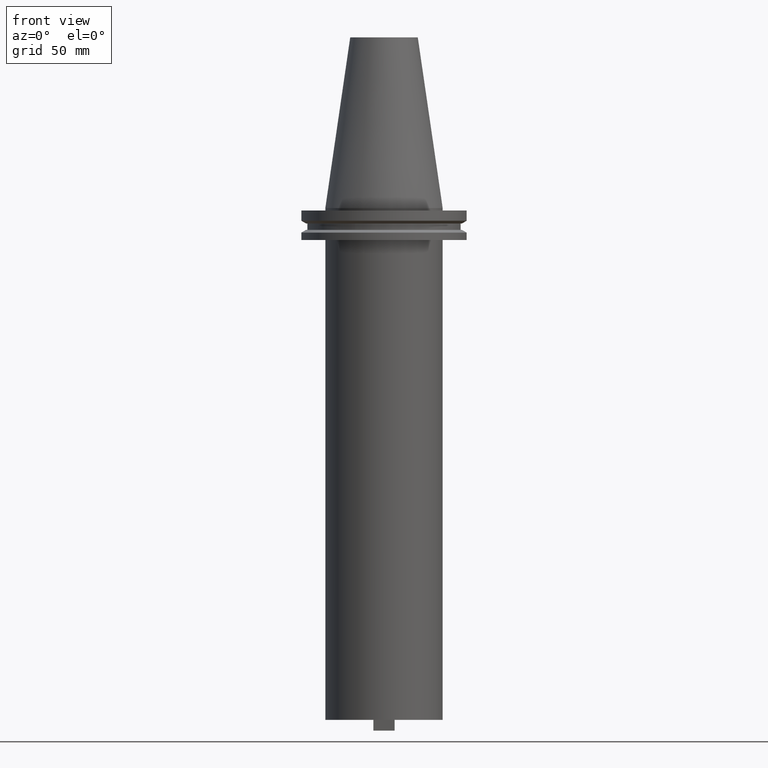
[diagram: clean part render]
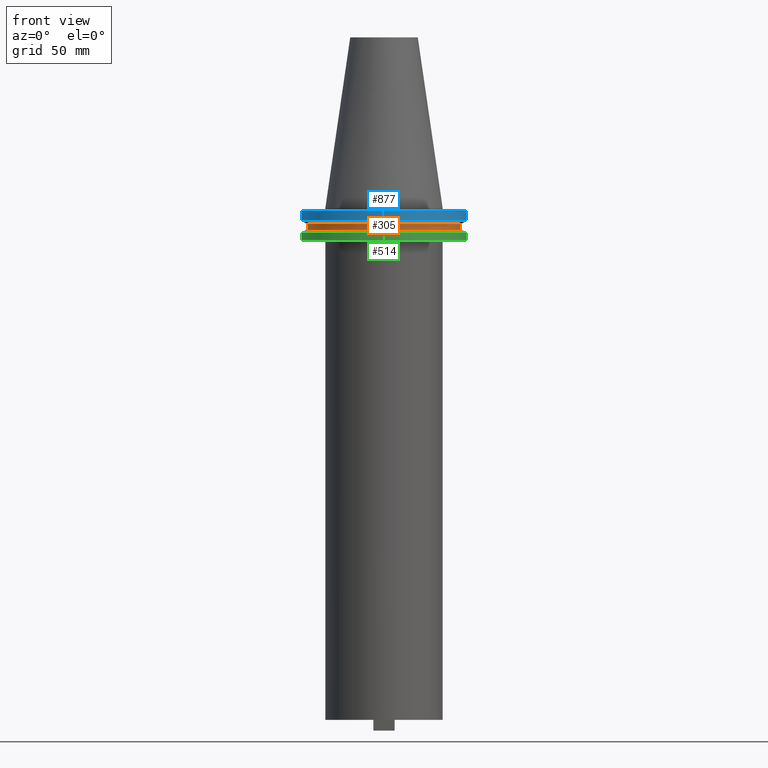
[diagram: same view with three faces highlighted in distinct colors, each labeled with its STEP entity id]
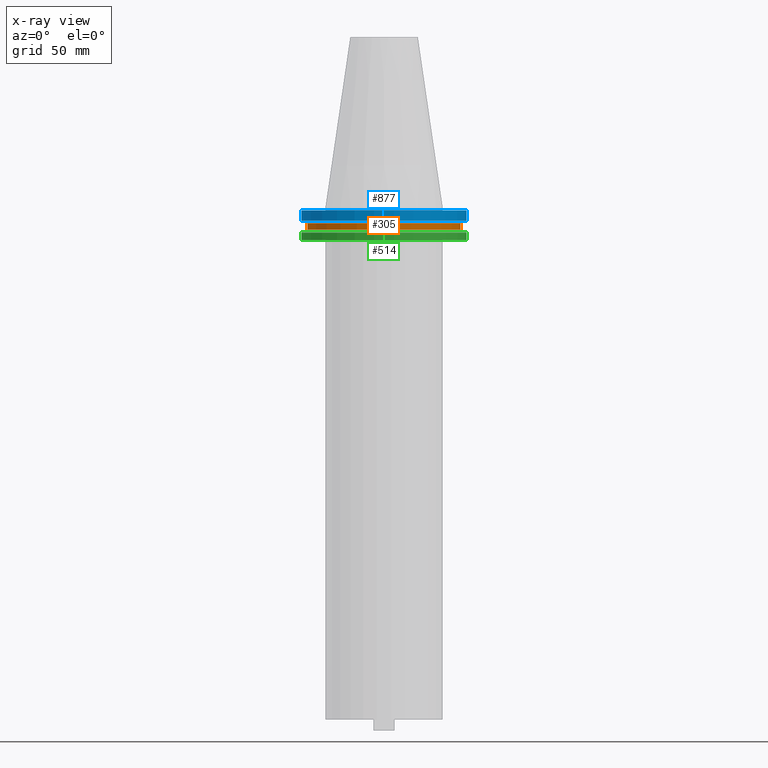
[diagram: x-ray of the same camera — body ghosted, the three highlighted faces saturated]
A machine part, front view with three faces highlighted in distinct colors.
The next image is the same camera in x-ray (body ghosted, the three faces saturated) — at least one of them is partly hidden behind the body in this view.
Their STEP definitions:

[orange] entity #305 — the highlighted cylindrical surface (partial cylindrical patch) has radius 45.645 mm, axis along (-0, -0, 1).
#46 = DIRECTION ( 'NONE',  ( -0.000000000000000000, -0.000000000000000000, 1.000000000000000000 ) ) ;
#113 = CIRCLE ( 'NONE', #466, 45.64500000000000313 ) ;
#118 = CYLINDRICAL_SURFACE ( 'NONE', #647, 45.64500000000000313 ) ;
#129 = DIRECTION ( 'NONE',  ( -0.000000000000000000, -0.000000000000000000, 1.000000000000000000 ) ) ;
#130 = VERTEX_POINT ( 'NONE', #934 ) ;
#163 = ORIENTED_EDGE ( 'NONE', *, *, #520, .F. ) ;
#179 = ORIENTED_EDGE ( 'NONE', *, *, #575, .F. ) ;
#193 = EDGE_LOOP ( 'NONE', ( #163, #786, #747, #179 ) ) ;
#220 = CARTESIAN_POINT ( 'NONE',  ( -45.64500000000000313, 5.589900314708094957E-15, -9.204999999999991189 ) ) ;
#238 = DIRECTION ( 'NONE',  ( -0.000000000000000000, -0.000000000000000000, 1.000000000000000000 ) ) ;
#257 = EDGE_CURVE ( 'NONE', #735, #530, #972, .T. ) ;
#302 = VECTOR ( 'NONE', #989, 1000.000000000000000 ) ;
#305 = ADVANCED_FACE ( 'NONE', ( #511 ), #118, .T. ) ;
#357 = VERTEX_POINT ( 'NONE', #220 ) ;
#358 = DIRECTION ( 'NONE',  ( 1.000000000000000000, 0.000000000000000000, 0.000000000000000000 ) ) ;
#466 = AXIS2_PLACEMENT_3D ( 'NONE', #986, #129, #358 ) ;
#511 = FACE_OUTER_BOUND ( 'NONE', #193, .T. ) ;
#520 = EDGE_CURVE ( 'NONE', #130, #357, #915, .T. ) ;
#530 = VERTEX_POINT ( 'NONE', #902 ) ;
#537 = CARTESIAN_POINT ( 'NONE',  ( 0.000000000000000000, 0.000000000000000000, -13.05499999999999794 ) ) ;
#545 = AXIS2_PLACEMENT_3D ( 'NONE', #537, #238, #547 ) ;
#547 = DIRECTION ( 'NONE',  ( 1.000000000000000000, 0.000000000000000000, 0.000000000000000000 ) ) ;
#562 = VECTOR ( 'NONE', #741, 1000.000000000000000 ) ;
#575 = EDGE_CURVE ( 'NONE', #357, #530, #113, .T. ) ;
#594 = DIRECTION ( 'NONE',  ( 1.000000000000000000, 0.000000000000000000, 0.000000000000000000 ) ) ;
#598 = EDGE_CURVE ( 'NONE', #130, #735, #695, .T. ) ;
#647 = AXIS2_PLACEMENT_3D ( 'NONE', #833, #46, #594 ) ;
#695 = CIRCLE ( 'NONE', #545, 45.64500000000000313 ) ;
#735 = VERTEX_POINT ( 'NONE', #794 ) ;
#741 = DIRECTION ( 'NONE',  ( -0.000000000000000000, -0.000000000000000000, 1.000000000000000000 ) ) ;
#747 = ORIENTED_EDGE ( 'NONE', *, *, #257, .T. ) ;
#786 = ORIENTED_EDGE ( 'NONE', *, *, #598, .T. ) ;
#794 = CARTESIAN_POINT ( 'NONE',  ( 45.64500000000000313, 0.000000000000000000, -13.05499999999999794 ) ) ;
#831 = CARTESIAN_POINT ( 'NONE',  ( -45.64500000000000313, 5.589900314708094957E-15, 101.5999999999999943 ) ) ;
#833 = CARTESIAN_POINT ( 'NONE',  ( 0.000000000000000000, 0.000000000000000000, 101.5999999999999943 ) ) ;
#902 = CARTESIAN_POINT ( 'NONE',  ( 45.64500000000000313, 0.000000000000000000, -9.204999999999991189 ) ) ;
#915 = LINE ( 'NONE', #831, #562 ) ;
#917 = CARTESIAN_POINT ( 'NONE',  ( 45.64500000000000313, 0.000000000000000000, 101.5999999999999943 ) ) ;
#934 = CARTESIAN_POINT ( 'NONE',  ( -45.64500000000000313, 5.589900314708094957E-15, -13.05499999999999794 ) ) ;
#972 = LINE ( 'NONE', #917, #302 ) ;
#986 = CARTESIAN_POINT ( 'NONE',  ( 0.000000000000000000, 0.000000000000000000, -9.204999999999991189 ) ) ;
#989 = DIRECTION ( 'NONE',  ( -0.000000000000000000, -0.000000000000000000, 1.000000000000000000 ) ) ;

[blue] entity #877 — the highlighted cylindrical surface (partial cylindrical patch) has radius 49.215 mm, axis along (-0, -0, 1).
#4 = CARTESIAN_POINT ( 'NONE',  ( -49.21500000000000341, 6.027099222003699404E-15, -7.602389855251287187 ) ) ;
#22 = DIRECTION ( 'NONE',  ( -0.000000000000000000, -0.000000000000000000, 1.000000000000000000 ) ) ;
#24 = DIRECTION ( 'NONE',  ( 1.000000000000000000, 0.000000000000000000, 0.000000000000000000 ) ) ;
#35 = CYLINDRICAL_SURFACE ( 'NONE', #970, 49.21499999999999631 ) ;
#36 = VERTEX_POINT ( 'NONE', #768 ) ;
#124 = EDGE_CURVE ( 'NONE', #36, #287, #1008, .T. ) ;
#133 = CARTESIAN_POINT ( 'NONE',  ( 0.000000000000000000, 0.000000000000000000, 101.5999999999999943 ) ) ;
#183 = EDGE_LOOP ( 'NONE', ( #501, #713, #211, #772 ) ) ;
#186 = EDGE_CURVE ( 'NONE', #643, #36, #709, .T. ) ;
#210 = DIRECTION ( 'NONE',  ( -0.000000000000000000, -0.000000000000000000, 1.000000000000000000 ) ) ;
#211 = ORIENTED_EDGE ( 'NONE', *, *, #124, .T. ) ;
#228 = LINE ( 'NONE', #853, #615 ) ;
#250 = CIRCLE ( 'NONE', #433, 49.21499999999999631 ) ;
#287 = VERTEX_POINT ( 'NONE', #587 ) ;
#313 = CARTESIAN_POINT ( 'NONE',  ( 49.21499999999999631, 0.000000000000000000, 101.5999999999999943 ) ) ;
#356 = DIRECTION ( 'NONE',  ( 1.000000000000000000, 0.000000000000000000, 0.000000000000000000 ) ) ;
#433 = AXIS2_PLACEMENT_3D ( 'NONE', #560, #801, #24 ) ;
#501 = ORIENTED_EDGE ( 'NONE', *, *, #715, .F. ) ;
#559 = CARTESIAN_POINT ( 'NONE',  ( 0.000000000000000000, 0.000000000000000000, -7.602389855251287187 ) ) ;
#560 = CARTESIAN_POINT ( 'NONE',  ( 0.000000000000000000, 0.000000000000000000, -1.499999999999987566 ) ) ;
#587 = CARTESIAN_POINT ( 'NONE',  ( 49.21499999999999631, 0.000000000000000000, -1.499999999999987566 ) ) ;
#591 = VERTEX_POINT ( 'NONE', #944 ) ;
#615 = VECTOR ( 'NONE', #935, 1000.000000000000000 ) ;
#626 = DIRECTION ( 'NONE',  ( -0.000000000000000000, -0.000000000000000000, 1.000000000000000000 ) ) ;
#643 = VERTEX_POINT ( 'NONE', #4 ) ;
#694 = VECTOR ( 'NONE', #626, 1000.000000000000000 ) ;
#709 = CIRCLE ( 'NONE', #837, 49.21500000000000341 ) ;
#713 = ORIENTED_EDGE ( 'NONE', *, *, #186, .T. ) ;
#715 = EDGE_CURVE ( 'NONE', #643, #591, #228, .T. ) ;
#754 = DIRECTION ( 'NONE',  ( 1.000000000000000000, 0.000000000000000000, 0.000000000000000000 ) ) ;
#768 = CARTESIAN_POINT ( 'NONE',  ( 49.21500000000000341, 0.000000000000000000, -7.602389855251287187 ) ) ;
#772 = ORIENTED_EDGE ( 'NONE', *, *, #782, .F. ) ;
#782 = EDGE_CURVE ( 'NONE', #591, #287, #250, .T. ) ;
#801 = DIRECTION ( 'NONE',  ( -0.000000000000000000, -0.000000000000000000, 1.000000000000000000 ) ) ;
#813 = FACE_OUTER_BOUND ( 'NONE', #183, .T. ) ;
#837 = AXIS2_PLACEMENT_3D ( 'NONE', #559, #22, #754 ) ;
#853 = CARTESIAN_POINT ( 'NONE',  ( -49.21499999999999631, 6.027099222003697826E-15, 101.5999999999999943 ) ) ;
#877 = ADVANCED_FACE ( 'NONE', ( #813 ), #35, .T. ) ;
#935 = DIRECTION ( 'NONE',  ( -0.000000000000000000, -0.000000000000000000, 1.000000000000000000 ) ) ;
#944 = CARTESIAN_POINT ( 'NONE',  ( -49.21499999999999631, 6.027099222003697826E-15, -1.499999999999987566 ) ) ;
#970 = AXIS2_PLACEMENT_3D ( 'NONE', #133, #210, #356 ) ;
#1008 = LINE ( 'NONE', #313, #694 ) ;

[green] entity #514 — the highlighted cylindrical surface (partial cylindrical patch) has radius 49.215 mm, axis along (-0, -0, 1).
#26 = CARTESIAN_POINT ( 'NONE',  ( 49.21499999999998920, 0.000000000000000000, 101.5999999999999943 ) ) ;
#52 = CARTESIAN_POINT ( 'NONE',  ( 0.000000000000000000, 0.000000000000000000, -14.65761014474876944 ) ) ;
#90 = LINE ( 'NONE', #26, #304 ) ;
#121 = ORIENTED_EDGE ( 'NONE', *, *, #322, .F. ) ;
#160 = CARTESIAN_POINT ( 'NONE',  ( -49.21499999999998920, 6.027099222003697037E-15, -19.04999999999999716 ) ) ;
#166 = VERTEX_POINT ( 'NONE', #160 ) ;
#208 = DIRECTION ( 'NONE',  ( 1.000000000000000000, 0.000000000000000000, 0.000000000000000000 ) ) ;
#232 = CARTESIAN_POINT ( 'NONE',  ( 49.21499999999998920, 0.000000000000000000, -19.04999999999999716 ) ) ;
#234 = AXIS2_PLACEMENT_3D ( 'NONE', #52, #751, #286 ) ;
#244 = VERTEX_POINT ( 'NONE', #506 ) ;
#286 = DIRECTION ( 'NONE',  ( 1.000000000000000000, 0.000000000000000000, 0.000000000000000000 ) ) ;
#288 = CIRCLE ( 'NONE', #234, 49.21499999999998920 ) ;
#294 = FACE_OUTER_BOUND ( 'NONE', #880, .T. ) ;
#304 = VECTOR ( 'NONE', #866, 1000.000000000000000 ) ;
#322 = EDGE_CURVE ( 'NONE', #166, #361, #442, .T. ) ;
#361 = VERTEX_POINT ( 'NONE', #389 ) ;
#369 = CYLINDRICAL_SURFACE ( 'NONE', #950, 49.21499999999998920 ) ;
#380 = DIRECTION ( 'NONE',  ( -0.000000000000000000, -0.000000000000000000, 1.000000000000000000 ) ) ;
#386 = DIRECTION ( 'NONE',  ( 1.000000000000000000, 0.000000000000000000, 0.000000000000000000 ) ) ;
#389 = CARTESIAN_POINT ( 'NONE',  ( -49.21499999999998920, 6.027099222003697037E-15, -14.65761014474876944 ) ) ;
#442 = LINE ( 'NONE', #700, #660 ) ;
#506 = CARTESIAN_POINT ( 'NONE',  ( 49.21499999999998920, 0.000000000000000000, -14.65761014474876944 ) ) ;
#514 = ADVANCED_FACE ( 'NONE', ( #294 ), #369, .T. ) ;
#548 = AXIS2_PLACEMENT_3D ( 'NONE', #942, #380, #386 ) ;
#606 = DIRECTION ( 'NONE',  ( -0.000000000000000000, -0.000000000000000000, 1.000000000000000000 ) ) ;
#660 = VECTOR ( 'NONE', #766, 1000.000000000000000 ) ;
#684 = CARTESIAN_POINT ( 'NONE',  ( 0.000000000000000000, 0.000000000000000000, 101.5999999999999943 ) ) ;
#700 = CARTESIAN_POINT ( 'NONE',  ( -49.21499999999998920, 6.027099222003697037E-15, 101.5999999999999943 ) ) ;
#704 = EDGE_CURVE ( 'NONE', #166, #719, #938, .T. ) ;
#719 = VERTEX_POINT ( 'NONE', #232 ) ;
#745 = ORIENTED_EDGE ( 'NONE', *, *, #851, .F. ) ;
#751 = DIRECTION ( 'NONE',  ( -0.000000000000000000, -0.000000000000000000, 1.000000000000000000 ) ) ;
#760 = EDGE_CURVE ( 'NONE', #719, #244, #90, .T. ) ;
#766 = DIRECTION ( 'NONE',  ( -0.000000000000000000, -0.000000000000000000, 1.000000000000000000 ) ) ;
#851 = EDGE_CURVE ( 'NONE', #361, #244, #288, .T. ) ;
#866 = DIRECTION ( 'NONE',  ( -0.000000000000000000, -0.000000000000000000, 1.000000000000000000 ) ) ;
#880 = EDGE_LOOP ( 'NONE', ( #121, #982, #967, #745 ) ) ;
#938 = CIRCLE ( 'NONE', #548, 49.21499999999998920 ) ;
#942 = CARTESIAN_POINT ( 'NONE',  ( 0.000000000000000000, 0.000000000000000000, -19.04999999999999716 ) ) ;
#950 = AXIS2_PLACEMENT_3D ( 'NONE', #684, #606, #208 ) ;
#967 = ORIENTED_EDGE ( 'NONE', *, *, #760, .T. ) ;
#982 = ORIENTED_EDGE ( 'NONE', *, *, #704, .T. ) ;